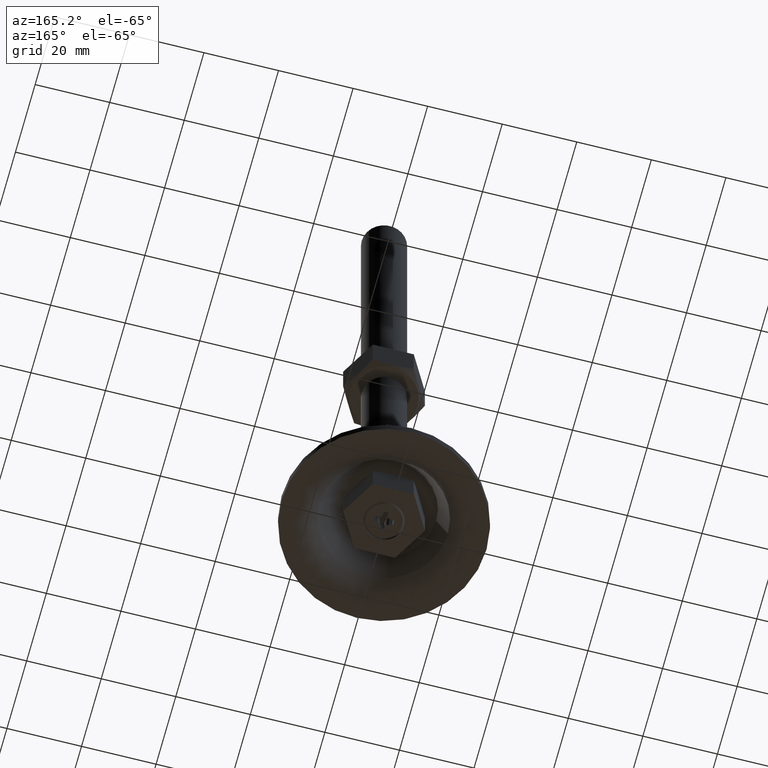
[diagram: clean part render]
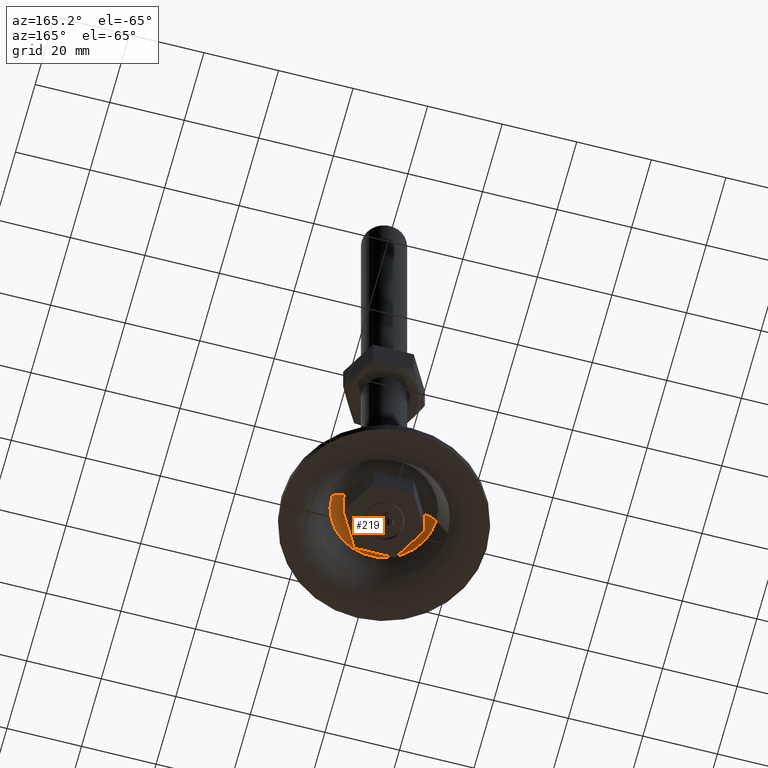
[diagram: same view with one face highlighted and labeled with its STEP entity id]
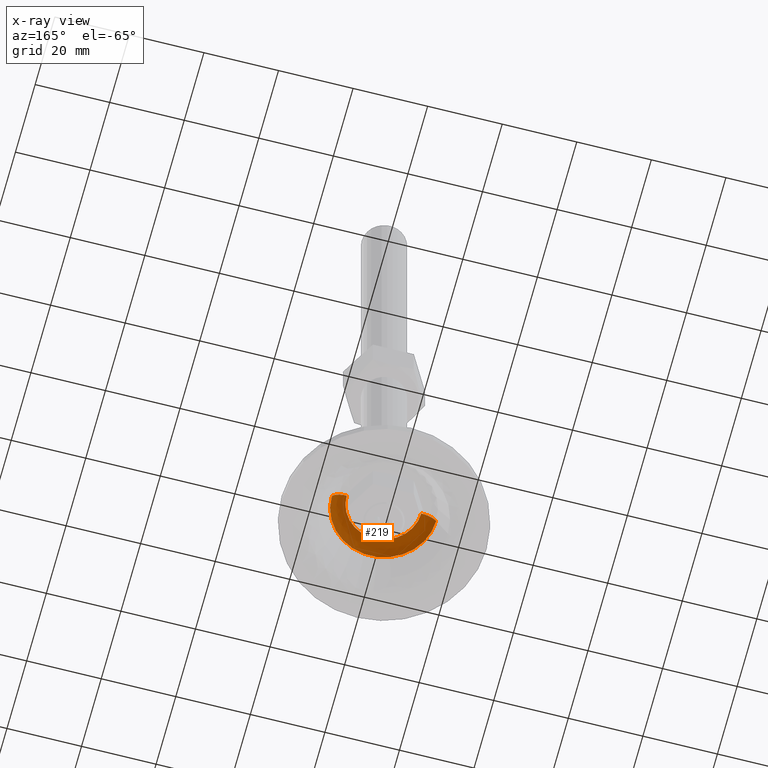
[diagram: x-ray of the same camera — body ghosted, the highlighted face saturated]
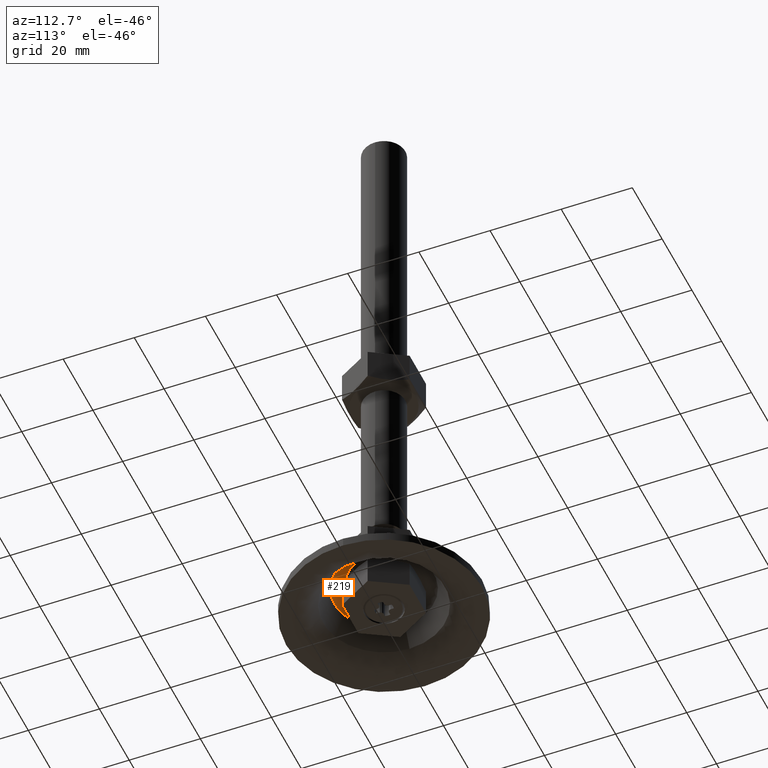
[diagram: same view with one face highlighted and labeled with its STEP entity id]
A machine part, auxiliary view. The second image highlights one B-rep face of the part: STEP entity #219.
The next image is the same camera in x-ray: the body ghosted, the highlighted face saturated — about 0% of this face is hidden behind the body in this view.
A second angle (auxiliary view) of the same face is appended — the face is thin or edge-on in the first view.
In plain terms, the highlighted face is a freeform B-spline surface patch.
Its self-contained STEP definition (entity closure, byte-faithful):
#219=ADVANCED_FACE('',(#956),#955,.F.);
#955=( BOUNDED_SURFACE() B_SPLINE_SURFACE( 2,2,((#1733,#1734,#1735,#1736,#1737),(#1738,#1739,#1740,#1741,#1742),(#1743,#1744,#1745,#1746,#1747),(#1748,#1749,#1750,#1751,#1752),(#1753,#1754,#1755,#1756,#1757)), .UNSPECIFIED.,.F.,.F.,.F.) B_SPLINE_SURFACE_WITH_KNOTS((3,2,3),(3,2,3),(0.00000000000E+00,5.00000000000E-01,1.00000000000E+00),(0.00000000000E+00,5.00000000000E-01,1.00000000000E+00), .UNSPECIFIED. ) GEOMETRIC_REPRESENTATION_ITEM() RATIONAL_B_SPLINE_SURFACE(((1.00000000000E+00,8.54911870673E-01,1.00000000000E+00,8.54911870673E-01,1.00000000000E+00),(7.07106781187E-01,6.04513981070E-01,7.07106781187E-01,6.04513981070E-01,7.07106781187E-01),(1.00000000000E+00,8.54911870673E-01,1.00000000000E+00,8.54911870673E-01,1.00000000000E+00),(7.07106781187E-01,6.04513981070E-01,7.07106781187E-01,6.04513981070E-01,7.07106781187E-01),(1.00000000000E+00,8.54911870673E-01,1.00000000000E+00,8.54911870673E-01,1.00000000000E+00))) REPRESENTATION_ITEM('') SURFACE() );
#956=FACE_OUTER_BOUND('',#1758,.T.);
#1733=CARTESIAN_POINT('',(6.01074714322E+00,-7.36079914284E-16,-1.29221314405E+01));
#1734=CARTESIAN_POINT('',(7.27162885911E+00,-8.90488290353E-16,-1.05000002000E+01));
#1735=CARTESIAN_POINT('',(1.00022958925E+01,-1.22488751028E-15,-1.05000002000E+01));
#1736=CARTESIAN_POINT('',(1.27329629259E+01,-1.55928673021E-15,-1.05000002000E+01));
#1737=CARTESIAN_POINT('',(1.39938446418E+01,-1.71369510628E-15,-1.29221314405E+01));
#1738=CARTESIAN_POINT('',(6.01074714322E+00,-6.01074714325E+00,-1.29221314405E+01));
#1739=CARTESIAN_POINT('',(7.27162885911E+00,-7.27162885913E+00,-1.05000002000E+01));
#1740=CARTESIAN_POINT('',(1.00022958925E+01,-1.00022958925E+01,-1.05000002000E+01));
#1741=CARTESIAN_POINT('',(1.27329629259E+01,-1.27329629260E+01,-1.05000002000E+01));
#1742=CARTESIAN_POINT('',(1.39938446418E+01,-1.39938446419E+01,-1.29221314405E+01));
#1743=CARTESIAN_POINT('',(-2.70585848061E-11,-6.01074714325E+00,-1.29221314405E+01));
#1744=CARTESIAN_POINT('',(-2.70586620077E-11,-7.27162885913E+00,-1.05000002000E+01));
#1745=CARTESIAN_POINT('',(-2.70588292018E-11,-1.00022958925E+01,-1.05000002000E+01));
#1746=CARTESIAN_POINT('',(-2.70589963959E-11,-1.27329629260E+01,-1.05000002000E+01));
#1747=CARTESIAN_POINT('',(-2.70590735975E-11,-1.39938446419E+01,-1.29221314405E+01));
#1748=CARTESIAN_POINT('',(-6.01074714327E+00,-6.01074714325E+00,-1.29221314405E+01));
#1749=CARTESIAN_POINT('',(-7.27162885916E+00,-7.27162885913E+00,-1.05000002000E+01));
#1750=CARTESIAN_POINT('',(-1.00022958926E+01,-1.00022958925E+01,-1.05000002000E+01));
#1751=CARTESIAN_POINT('',(-1.27329629260E+01,-1.27329629260E+01,-1.05000002000E+01));
#1752=CARTESIAN_POINT('',(-1.39938446419E+01,-1.39938446419E+01,-1.29221314405E+01));
#1753=CARTESIAN_POINT('',(-6.01074714327E+00,-2.43106621557E-20,-1.29221314405E+01));
#1754=CARTESIAN_POINT('',(-7.27162885916E+00,-2.94103392312E-20,-1.05000002000E+01));
#1755=CARTESIAN_POINT('',(-1.00022958926E+01,-4.04546107879E-20,-1.05000002000E+01));
#1756=CARTESIAN_POINT('',(-1.27329629260E+01,-5.14988823447E-20,-1.05000002000E+01));
#1757=CARTESIAN_POINT('',(-1.39938446419E+01,-5.65985594203E-20,-1.29221314405E+01));
#1758=EDGE_LOOP('',(#2397,#2398,#2399,#2400));
#2397=ORIENTED_EDGE('',*,*,#2662,.F.);
#2398=ORIENTED_EDGE('',*,*,#2679,.T.);
#2399=ORIENTED_EDGE('',*,*,#2680,.T.);
#2400=ORIENTED_EDGE('',*,*,#2681,.F.);
#2662=EDGE_CURVE('',#3738,#3737,#3745,.T.);
#2679=EDGE_CURVE('',#3738,#3861,#3862,.T.);
#2680=EDGE_CURVE('',#3861,#3868,#3869,.T.);
#2681=EDGE_CURVE('',#3737,#3868,#3875,.T.);
#3737=VERTEX_POINT('',#4867);
#3738=VERTEX_POINT('',#4868);
#3745=CIRCLE('',#4876,1.00022958926E+01);
#3861=VERTEX_POINT('',#4951);
#3862=(BOUNDED_CURVE() B_SPLINE_CURVE(2,(#4952,#4953,#4954),.UNSPECIFIED.,.F.,.F.) B_SPLINE_CURVE_WITH_KNOTS((3,3),(5.00000000000E-01,1.00000000000E+00),.UNSPECIFIED.) CURVE() GEOMETRIC_REPRESENTATION_ITEM() RATIONAL_B_SPLINE_CURVE((1.00000000000E+00,8.54911870673E-01,1.00000000000E+00)) REPRESENTATION_ITEM('') );
#3868=VERTEX_POINT('',#4955);
#3869=CIRCLE('',#4959,1.39938446419E+01);
#3875=(BOUNDED_CURVE() B_SPLINE_CURVE(3,(#4960,#4961,#4962,#4963,#4964),.UNSPECIFIED.,.F.,.F.) B_SPLINE_CURVE_WITH_KNOTS((4,1,4),(4.99999675919E-01,7.49999826009E-01,1.00000000000E+00),.UNSPECIFIED.) CURVE() GEOMETRIC_REPRESENTATION_ITEM() RATIONAL_B_SPLINE_CURVE((1.00000000000E+00,1.00000000000E+00,1.00000000000E+00,1.00000000000E+00,1.00000000000E+00)) REPRESENTATION_ITEM('') );
#4867=CARTESIAN_POINT('',(-1.00022958926E+01,0.00000000000E+00,-1.05000002000E+01));
#4868=CARTESIAN_POINT('',(1.00022958925E+01,5.92118946467E-16,-1.05000002000E+01));
#4873=CARTESIAN_POINT('',(-2.70574673777E-11,0.00000000000E+00,-1.05000002000E+01));
#4874=DIRECTION('',(-0.00000000000E+00,0.00000000000E+00,-1.00000000000E+00));
#4875=DIRECTION('',(-1.00000000000E+00,-1.22460635382E-16,0.00000000000E+00));
#4876=AXIS2_PLACEMENT_3D('',#4873,#4874,#4875);
#4951=CARTESIAN_POINT('',(1.39938446418E+01,5.92118946467E-16,-1.29221314405E+01));
#4952=CARTESIAN_POINT('',(1.00022958925E+01,-1.22488751028E-15,-1.05000002000E+01));
#4953=CARTESIAN_POINT('',(1.27329629259E+01,-1.55928673021E-15,-1.05000002000E+01));
#4954=CARTESIAN_POINT('',(1.39938446418E+01,-1.71369510628E-15,-1.29221314405E+01));
#4955=CARTESIAN_POINT('',(-1.39938446419E+01,0.00000000000E+00,-1.29221314405E+01));
#4956=CARTESIAN_POINT('',(-2.70574673777E-11,0.00000000000E+00,-1.29221314405E+01));
#4957=DIRECTION('',(-0.00000000000E+00,0.00000000000E+00,-1.00000000000E+00));
#4958=DIRECTION('',(-1.00000000000E+00,-1.22460635382E-16,0.00000000000E+00));
#4959=AXIS2_PLACEMENT_3D('',#4956,#4957,#4958);
#4960=CARTESIAN_POINT('',(-1.00022928663E+01,1.77635602213E-15,-1.05000002000E+01));
#4961=CARTESIAN_POINT('',(-1.08165827886E+01,1.65973833663E-15,-1.04977253401E+01));
#4962=CARTESIAN_POINT('',(-1.24553247068E+01,1.42113701632E-15,-1.09575306692E+01));
#4963=CARTESIAN_POINT('',(-1.36198647039E+01,1.24388999210E-15,-1.21987972268E+01));
#4964=CARTESIAN_POINT('',(-1.39938446419E+01,1.18423789293E-15,-1.29221314405E+01));